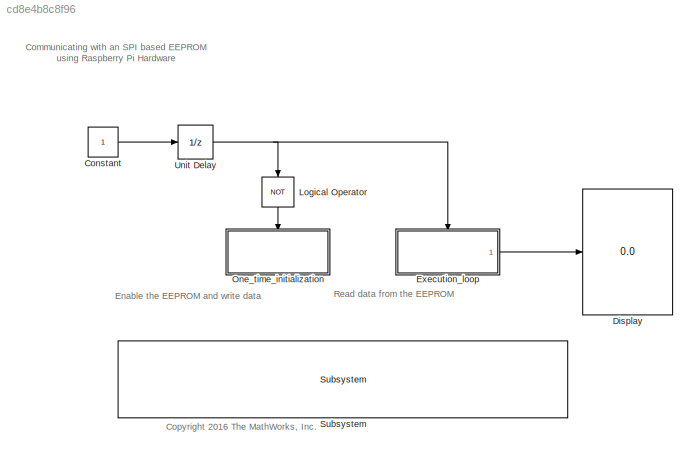
MODEL slx_cd8e4b8c8f96
KIND model
CONFIG AbsTol = auto
CONFIG EnableMultiTasking = off
CONFIG FixedStep = auto
CONFIG MaxStep = auto
CONFIG MinStep = auto
CONFIG RelTol = 1e-3
CONFIG SampleTimeConstraint = Unconstrained
CONFIG Solver = FixedStepAuto
CONFIG SolverName = FixedStepAuto
CONFIG StartTime = 0.0
CONFIG StopTime = inf
BLOCK [Constant] Constant
  OutDataTypeStr = boolean
  SampleTime = 0.1
BLOCK [Display] Display
  Decimation = 1
  Format = long
  Ports = [1]
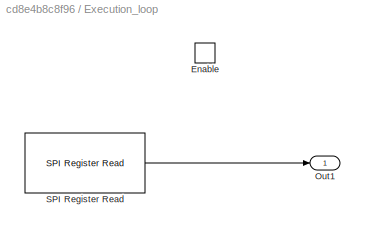
BLOCK [SubSystem] Execution_loop
  Ports = [0, 1, 1]
  RequestExecContextInheritance = off
  TreatAsAtomicUnit = on
BLOCK [EnablePort] Execution_loop/Enable
  Ports = []
  StatesWhenEnabling = reset
BLOCK [Outport] Execution_loop/Out1
  IconDisplay = Port number
  InitialOutput = 0
BLOCK [Reference] Execution_loop/SPI Register Read  REF=raspberrypilib/SPI Register Read
  Ports = [0, 1]
  SourceBlock = raspberrypilib/SPI Register Read
  SourceProductBaseCode = RASPPI
  SourceProductName = Simulink Support Package for Raspberry Pi Hardware
  SourceType = codertarget.raspi.internal.SPIRegisterRead
BLOCK [Logic] Logical Operator
  AllPortsSameDT = off
  Operator = NOT
  OutDataTypeStr = boolean
  Ports = [1, 1]
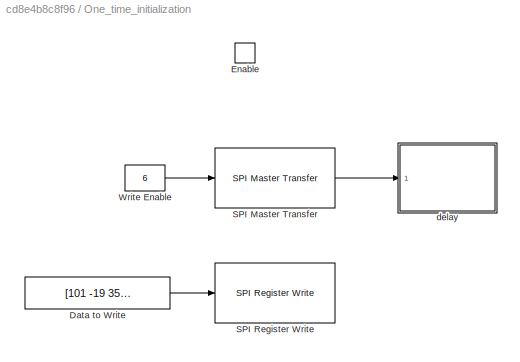
BLOCK [SubSystem] One_time_initialization
  Ports = [0, 0, 1]
  RTWSystemCode = Reusable function
  RequestExecContextInheritance = off
  TreatAsAtomicUnit = on
BLOCK [Constant] One_time_initialization/Data to Write
  OutDataTypeStr = int8
  SampleTime = 0.1
  Value = [101 -19 35 -87 4]
BLOCK [EnablePort] One_time_initialization/Enable
  Ports = []
  StatesWhenEnabling = reset
BLOCK [Reference] One_time_initialization/SPI Master Transfer  REF=raspberrypilib/SPI Master Transfer
  Ports = [1, 1]
  SourceBlock = raspberrypilib/SPI Master Transfer
  SourceProductBaseCode = RASPPI
  SourceProductName = Simulink Support Package for Raspberry Pi Hardware
  SourceType = codertarget.raspi.internal.SPIMasterTransfer
BLOCK [Reference] One_time_initialization/SPI Register Write  REF=raspberrypilib/SPI Register Write
  AttributesFormatString = Priority=%<Priority>
  Ports = [1]
  Priority = 6
  SourceBlock = raspberrypilib/SPI Register Write
  SourceProductBaseCode = RASPPI
  SourceProductName = Simulink Support Package for Raspberry Pi Hardware
  SourceType = codertarget.raspi.internal.SPIRegisterWrite
BLOCK [Constant] One_time_initialization/Write Enable
  OutDataTypeStr = uint8
  SampleTime = 0.1
  Value = 6
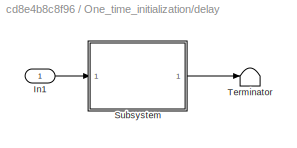
BLOCK [SubSystem] One_time_initialization/delay
  AttributesFormatString = Priority=%<Priority>
  Ports = [1]
  Priority = 1
  RequestExecContextInheritance = off
BLOCK [Inport] One_time_initialization/delay/In1
  IconDisplay = Port number
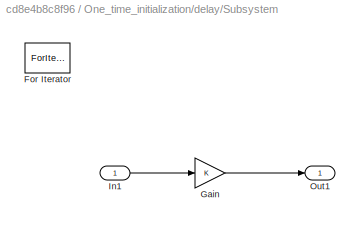
BLOCK [SubSystem] One_time_initialization/delay/Subsystem
  Ports = [1, 1]
  RequestExecContextInheritance = off
BLOCK [ForIterator] One_time_initialization/delay/Subsystem/For Iterator
  IndexMode = Zero-based
  IterationLimit = 10000
  Ports = []
  ShowIterationPort = off
BLOCK [Gain] One_time_initialization/delay/Subsystem/Gain
  SaturateOnIntegerOverflow = off
BLOCK [Inport] One_time_initialization/delay/Subsystem/In1
  IconDisplay = Port number
BLOCK [Outport] One_time_initialization/delay/Subsystem/Out1
  IconDisplay = Port number
BLOCK [Terminator] One_time_initialization/delay/Terminator
BLOCK [Reference] Subsystem  REF=realtime_examples_misc/Subsystem
  Ports = []
  SourceBlock = realtime_examples_misc/Subsystem
BLOCK [UnitDelay] Unit Delay
  InputProcessing = Elements as channels (sample based)
  SampleTime = -1
ANNOTATION (root): Communicating with an SPI based EEPROM using Raspberry Pi Hardware
ANNOTATION (root): <copyright redacted>
ANNOTATION (root): Enable the EEPROM and write data
ANNOTATION (root): Read data from the EEPROM
LINE Constant:1 -> Unit Delay:1
LINE Execution_loop/SPI Register Read:1 -> Execution_loop/Out1:1
LINE Execution_loop:1 -> Display:1
LINE Logical Operator:1 -> One_time_initialization:enable
LINE One_time_initialization/Data to Write:1 -> One_time_initialization/SPI Register Write:1
LINE One_time_initialization/SPI Master Transfer:1 -> One_time_initialization/delay:1
LINE One_time_initialization/Write Enable:1 -> One_time_initialization/SPI Master Transfer:1
LINE One_time_initialization/delay/In1:1 -> One_time_initialization/delay/Subsystem:1
LINE One_time_initialization/delay/Subsystem/Gain:1 -> One_time_initialization/delay/Subsystem/Out1:1
LINE One_time_initialization/delay/Subsystem/In1:1 -> One_time_initialization/delay/Subsystem/Gain:1
LINE One_time_initialization/delay/Subsystem:1 -> One_time_initialization/delay/Terminator:1
NET Unit Delay:1 -> Execution_loop:enable, Logical Operator:1
note: NET lines group one-source signal fan-out (src -> all destinations, sorted); 1:1 wires keep LINE
